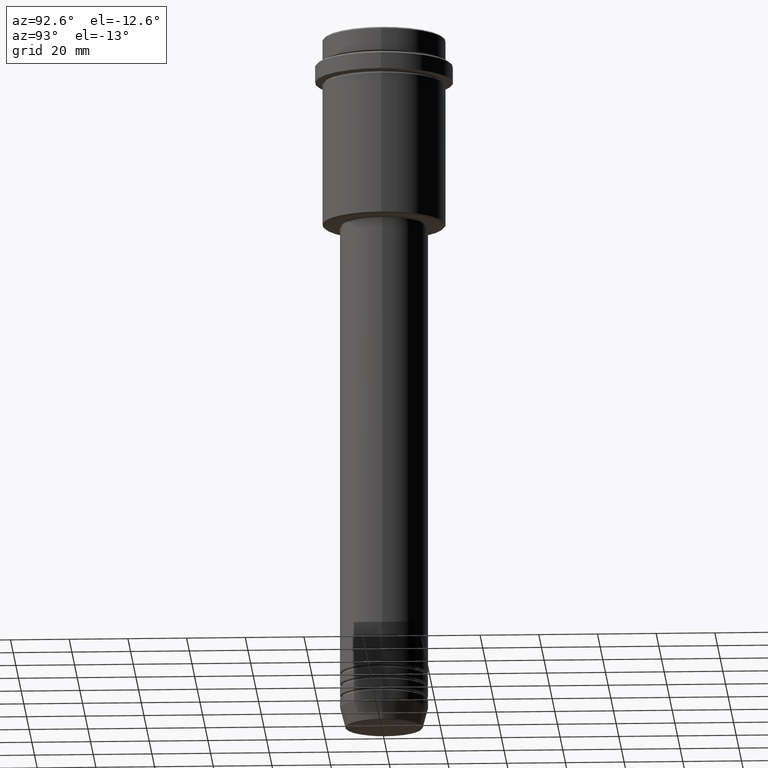
[diagram: clean part render]
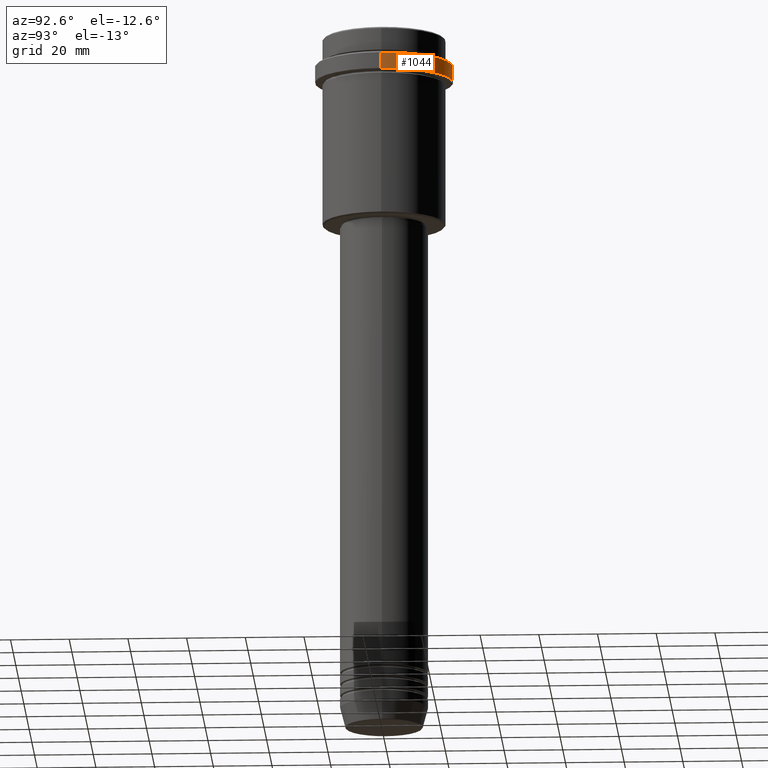
[diagram: same view with one face highlighted and labeled with its STEP entity id]
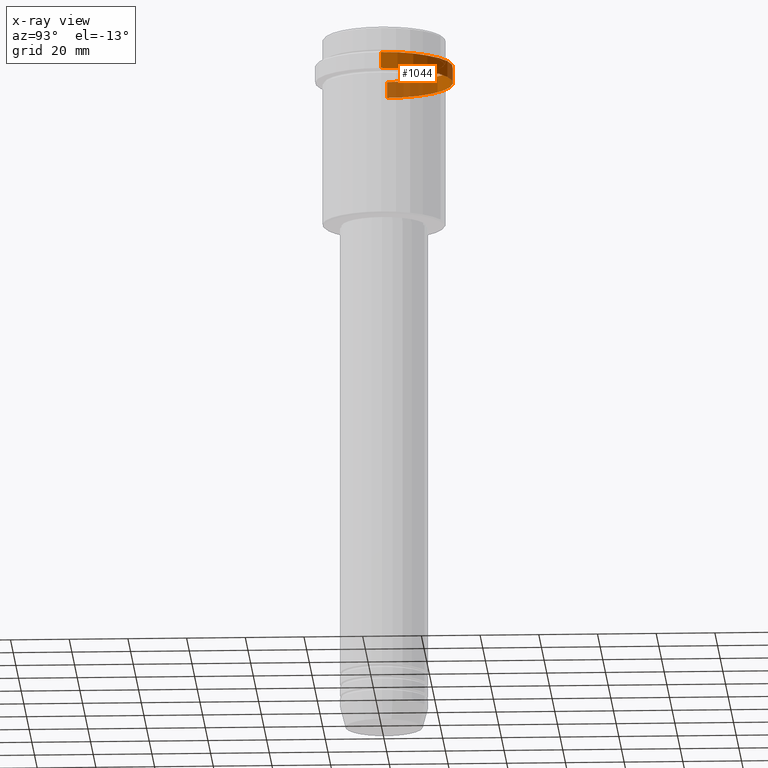
[diagram: x-ray of the same camera — body ghosted, the highlighted face saturated]
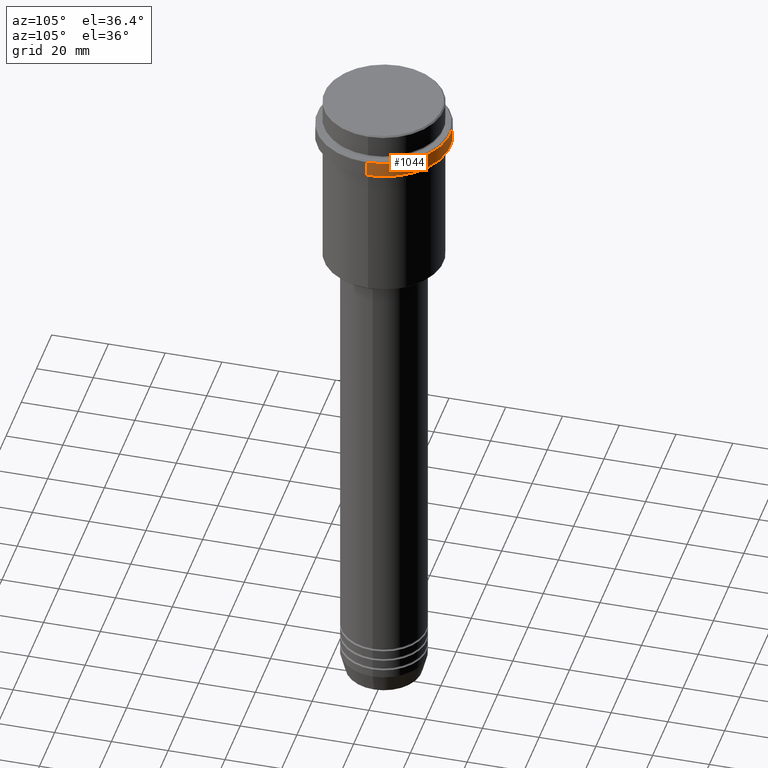
[diagram: same view with one face highlighted and labeled with its STEP entity id]
A machine part, auxiliary view. The second image highlights one B-rep face of the part: STEP entity #1044.
The next image is the same camera in x-ray: the body ghosted, the highlighted face saturated — about 37% of this face is hidden behind the body in this view.
A second angle (auxiliary view) of the same face is appended — the face is thin or edge-on in the first view.
In plain terms, the highlighted cylindrical surface (partial cylindrical patch) has radius 23.5 mm, axis along (-0, -0, 1).
Its self-contained STEP definition (entity closure, byte-faithful):
#68 = LINE ( 'NONE', #284, #913 ) ;
#137 = VECTOR ( 'NONE', #472, 1000.000000000000000 ) ;
#216 = CARTESIAN_POINT ( 'NONE',  ( 0.000000000000000000, 0.000000000000000000, 0.000000000000000000 ) ) ;
#284 = CARTESIAN_POINT ( 'NONE',  ( -23.50000000000000000, 2.877919977996280320E-15, 0.000000000000000000 ) ) ;
#409 = CARTESIAN_POINT ( 'NONE',  ( 0.000000000000000000, 0.000000000000000000, -9.499999999999971578 ) ) ;
#426 = EDGE_CURVE ( 'NONE', #808, #803, #820, .T. ) ;
#446 = FACE_OUTER_BOUND ( 'NONE', #1009, .T. ) ;
#465 = VERTEX_POINT ( 'NONE', #726 ) ;
#472 = DIRECTION ( 'NONE',  ( -0.000000000000000000, -0.000000000000000000, 1.000000000000000000 ) ) ;
#495 = DIRECTION ( 'NONE',  ( -0.000000000000000000, -0.000000000000000000, 1.000000000000000000 ) ) ;
#508 = ORIENTED_EDGE ( 'NONE', *, *, #819, .F. ) ;
#552 = DIRECTION ( 'NONE',  ( -0.000000000000000000, -0.000000000000000000, 1.000000000000000000 ) ) ;
#574 = CARTESIAN_POINT ( 'NONE',  ( 23.50000000000000000, 0.000000000000000000, -9.499999999999971578 ) ) ;
#585 = EDGE_CURVE ( 'NONE', #465, #1198, #684, .T. ) ;
#589 = ORIENTED_EDGE ( 'NONE', *, *, #938, .T. ) ;
#594 = DIRECTION ( 'NONE',  ( 0.000000000000000000, 0.000000000000000000, -1.000000000000000000 ) ) ;
#598 = CARTESIAN_POINT ( 'NONE',  ( 23.50000000000000000, 0.000000000000000000, 0.000000000000000000 ) ) ;
#684 = CIRCLE ( 'NONE', #1398, 23.50000000000000000 ) ;
#726 = CARTESIAN_POINT ( 'NONE',  ( -23.50000000000000000, 2.877919977996280320E-15, -9.499999999999971578 ) ) ;
#803 = VERTEX_POINT ( 'NONE', #1142 ) ;
#808 = VERTEX_POINT ( 'NONE', #1017 ) ;
#816 = ORIENTED_EDGE ( 'NONE', *, *, #426, .T. ) ;
#819 = EDGE_CURVE ( 'NONE', #808, #1198, #916, .T. ) ;
#820 = CIRCLE ( 'NONE', #937, 23.50000000000000355 ) ;
#849 = CARTESIAN_POINT ( 'NONE',  ( 0.000000000000000000, 0.000000000000000000, -15.00000000000000000 ) ) ;
#913 = VECTOR ( 'NONE', #1169, 1000.000000000000000 ) ;
#916 = LINE ( 'NONE', #598, #137 ) ;
#937 = AXIS2_PLACEMENT_3D ( 'NONE', #849, #495, #960 ) ;
#938 = EDGE_CURVE ( 'NONE', #803, #465, #68, .T. ) ;
#960 = DIRECTION ( 'NONE',  ( 1.000000000000000000, 0.000000000000000000, 0.000000000000000000 ) ) ;
#1009 = EDGE_LOOP ( 'NONE', ( #816, #589, #1113, #508 ) ) ;
#1017 = CARTESIAN_POINT ( 'NONE',  ( 23.50000000000000355, 0.000000000000000000, -15.00000000000000000 ) ) ;
#1033 = DIRECTION ( 'NONE',  ( 1.000000000000000000, 0.000000000000000000, 0.000000000000000000 ) ) ;
#1044 = ADVANCED_FACE ( 'NONE', ( #446 ), #1102, .T. ) ;
#1102 = CYLINDRICAL_SURFACE ( 'NONE', #1153, 23.50000000000000000 ) ;
#1111 = DIRECTION ( 'NONE',  ( 1.000000000000000000, 0.000000000000000000, 0.000000000000000000 ) ) ;
#1113 = ORIENTED_EDGE ( 'NONE', *, *, #585, .T. ) ;
#1142 = CARTESIAN_POINT ( 'NONE',  ( -23.50000000000000711, 2.877919977996281109E-15, -15.00000000000000000 ) ) ;
#1153 = AXIS2_PLACEMENT_3D ( 'NONE', #216, #552, #1111 ) ;
#1169 = DIRECTION ( 'NONE',  ( -0.000000000000000000, -0.000000000000000000, 1.000000000000000000 ) ) ;
#1198 = VERTEX_POINT ( 'NONE', #574 ) ;
#1398 = AXIS2_PLACEMENT_3D ( 'NONE', #409, #594, #1033 ) ;